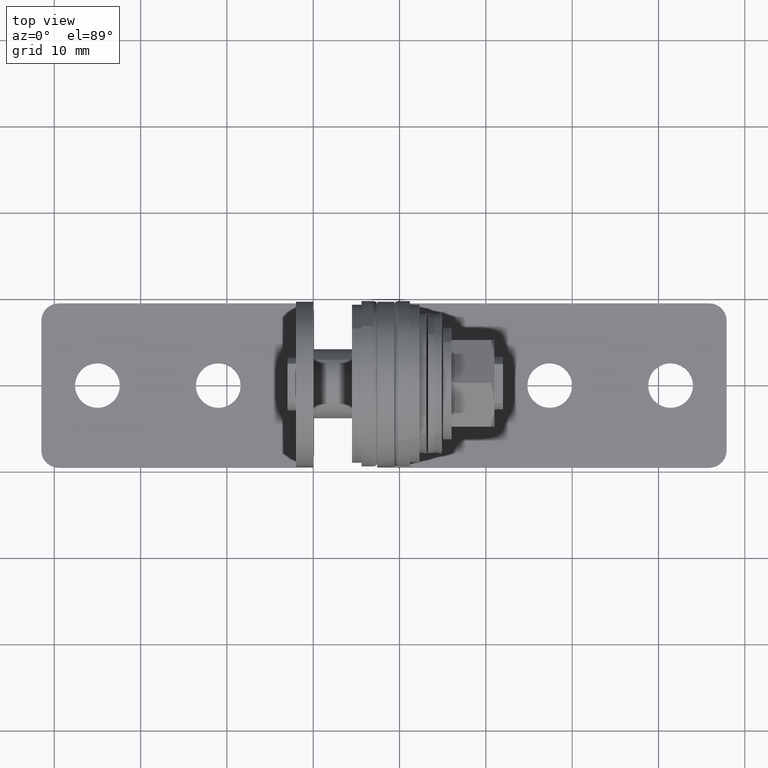
[diagram: clean part render]
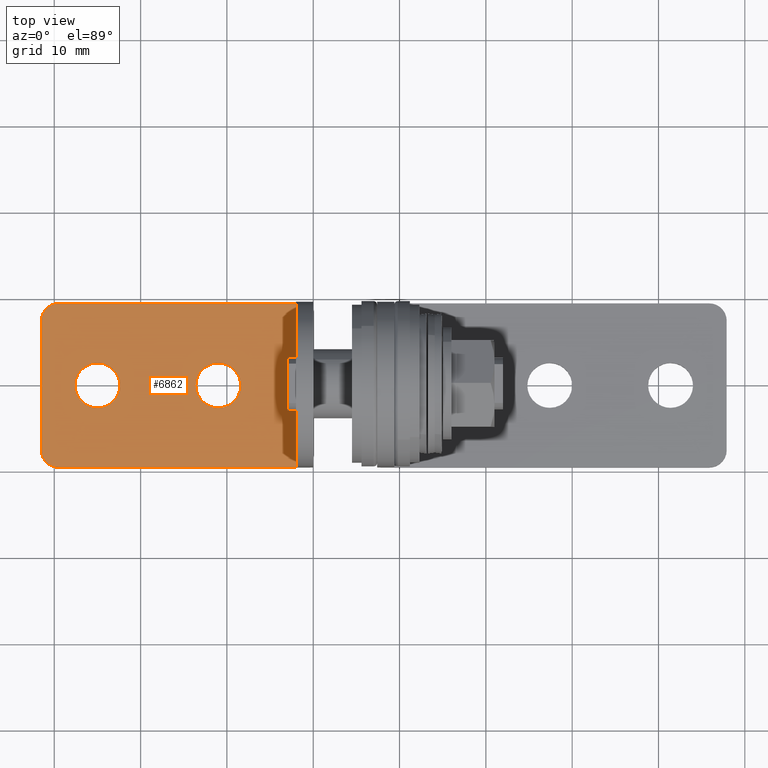
[diagram: same view with one face highlighted and labeled with its STEP entity id]
A machine part, top view. The second image highlights one B-rep face of the part: STEP entity #6862.
In plain terms, the highlighted face is a freeform B-spline surface patch.
Its self-contained STEP definition (entity closure, byte-faithful):
#5818=CARTESIAN_POINT('',(-23.145549043912471,-1.822363930594330,-10.999999999995680));
#5819=VERTEX_POINT('',#5818);
#5825=CARTESIAN_POINT('',(-22.399999999999999,0.0,-10.999999999995680));
#5826=VERTEX_POINT('',#5825);
#5827=CARTESIAN_POINT('',(-22.399999999999999,0.0,-10.999999999995680));
#5828=CARTESIAN_POINT('',(-22.399850629845378,-0.273468216536677,-10.999999999995669));
#5829=CARTESIAN_POINT('',(-22.478722159814492,-0.767709790875972,-10.999999999995730));
#5830=CARTESIAN_POINT('',(-22.769588675095900,-1.380795391501197,-10.999999999995600));
#5831=CARTESIAN_POINT('',(-23.020218561321769,-1.694850328991109,-10.999999999995721));
#5832=CARTESIAN_POINT('',(-23.145549043912471,-1.822363930594330,-10.999999999995680));
#5833=B_SPLINE_CURVE_WITH_KNOTS('',3,(#5827,#5828,#5829,#5830,#5831,#5832),.UNSPECIFIED.,.F.,.U.,(4,1,1,4),(0.000000024906273,0.820370620294471,1.482966042925823,2.019358270541513),.UNSPECIFIED.);
#5834=EDGE_CURVE('',#5826,#5819,#5833,.T.);
#5836=CARTESIAN_POINT('',(-24.999998956814380,2.599999999999791,-10.999999999995680));
#5837=VERTEX_POINT('',#5836);
#5838=CARTESIAN_POINT('',(-24.999998956814380,2.599999999999791,-10.999999999995680));
#5839=CARTESIAN_POINT('',(-24.680888185510700,2.600276141021180,-10.999999999995680));
#5840=CARTESIAN_POINT('',(-24.159955914862749,2.502813517734464,-10.999999999995650));
#5841=CARTESIAN_POINT('',(-23.563078611779769,2.188374372574919,-10.999999999995730));
#5842=CARTESIAN_POINT('',(-23.158753300675968,1.856525949137078,-10.999999999995620));
#5843=CARTESIAN_POINT('',(-22.821587010562070,1.455855586481626,-10.999999999995721));
#5844=CARTESIAN_POINT('',(-22.497203970679809,0.840036516636537,-10.999999999995660));
#5845=CARTESIAN_POINT('',(-22.399706107923262,0.319114744127429,-10.999999999995680));
#5846=CARTESIAN_POINT('',(-22.399999999999999,0.0,-10.999999999995680));
#5847=B_SPLINE_CURVE_WITH_KNOTS('',3,(#5838,#5839,#5840,#5841,#5842,#5843,#5844,#5845,#5846),.UNSPECIFIED.,.F.,.U.,(4,1,1,1,1,1,4),(0.000000103882619,0.957209066318276,1.563448100099104,2.010172297767981,2.520648982741792,3.126886190051260,4.084095487525218),.UNSPECIFIED.);
#5848=EDGE_CURVE('',#5837,#5826,#5847,.T.);
#5850=CARTESIAN_POINT('',(-26.854450956087529,1.822363930594329,-10.999999999995680));
#5851=VERTEX_POINT('',#5850);
#5852=CARTESIAN_POINT('',(-26.854450956087529,1.822363930594329,-10.999999999995680));
#5853=CARTESIAN_POINT('',(-26.620984433229381,2.060419871780607,-10.999999999995680));
#5854=CARTESIAN_POINT('',(-26.196360748274660,2.351392270537872,-10.999999999995650));
#5855=CARTESIAN_POINT('',(-25.537662916495592,2.562400394675430,-10.999999999995721));
#5856=CARTESIAN_POINT('',(-25.182815685251530,2.600030274366592,-10.999999999995660));
#5857=CARTESIAN_POINT('',(-24.999998956814380,2.599999999999791,-10.999999999995680));
#5858=B_SPLINE_CURVE_WITH_KNOTS('',3,(#5852,#5853,#5854,#5855,#5856,#5857),.UNSPECIFIED.,.F.,.U.,(4,1,1,4),(0.000000027831919,1.000124146000410,1.516292248789808,2.064738652802962),.UNSPECIFIED.);
#5859=EDGE_CURVE('',#5851,#5837,#5858,.T.);
#5948=CARTESIAN_POINT('',(-27.600000000000001,0.0,-10.999999999995680));
#5949=VERTEX_POINT('',#5948);
#5950=CARTESIAN_POINT('',(-27.600000000000001,0.0,-10.999999999995680));
#5951=CARTESIAN_POINT('',(-27.600027485261649,0.178798610902099,-10.999999999995669));
#5952=CARTESIAN_POINT('',(-27.564047300242130,0.525852948206069,-10.999999999995699));
#5953=CARTESIAN_POINT('',(-27.362083692617642,1.171302784193965,-10.999999999995660));
#5954=CARTESIAN_POINT('',(-27.083256008681470,1.590005155242634,-10.999999999995710));
#5955=CARTESIAN_POINT('',(-26.854450956087529,1.822363930594329,-10.999999999995680));
#5956=B_SPLINE_CURVE_WITH_KNOTS('',3,(#5950,#5951,#5952,#5953,#5954,#5955),.UNSPECIFIED.,.F.,.U.,(4,1,1,4),(0.000000024907635,0.536392252523473,1.041216322572380,2.019358270541513),.UNSPECIFIED.);
#5957=EDGE_CURVE('',#5949,#5851,#5956,.T.);
#5959=CARTESIAN_POINT('',(-25.000001043185620,-2.599999999999791,-10.999999999995680));
#5960=VERTEX_POINT('',#5959);
#5961=CARTESIAN_POINT('',(-25.000001043185620,-2.599999999999791,-10.999999999995680));
#5962=CARTESIAN_POINT('',(-25.319125105370851,-2.600281342752007,-10.999999999995721));
#5963=CARTESIAN_POINT('',(-25.776219995230122,-2.514716412267533,-10.999999999995641));
#5964=CARTESIAN_POINT('',(-26.401342038736608,-2.214325302883715,-10.999999999995721));
#5965=CARTESIAN_POINT('',(-26.900598449657270,-1.824815729269865,-10.999999999995600));
#5966=CARTESIAN_POINT('',(-27.316274159204209,-1.249699538099096,-10.999999999995770));
#5967=CARTESIAN_POINT('',(-27.551409862776872,-0.616850679392978,-10.999999999995580));
#5968=CARTESIAN_POINT('',(-27.600035598936401,-0.202075647442500,-10.999999999995790));
#5969=CARTESIAN_POINT('',(-27.600000000000001,0.0,-10.999999999995680));
#5970=B_SPLINE_CURVE_WITH_KNOTS('',3,(#5961,#5962,#5963,#5964,#5965,#5966,#5967,#5968,#5969),.UNSPECIFIED.,.F.,.U.,(4,1,1,1,1,1,4),(0.000000103871935,0.957209066309763,1.372009929409732,2.073923092050931,2.839716054880501,3.477870385586613,4.084095487525312),.UNSPECIFIED.);
#5971=EDGE_CURVE('',#5960,#5949,#5970,.T.);
#5973=CARTESIAN_POINT('',(-23.145549043912471,-1.822363930594330,-10.999999999995680));
#5974=CARTESIAN_POINT('',(-23.311317951887549,-1.991175497180179,-10.999999999995699));
#5975=CARTESIAN_POINT('',(-23.637839686492729,-2.243158302766792,-10.999999999995660));
#5976=CARTESIAN_POINT('',(-24.268834510424380,-2.526416051531268,-10.999999999995710));
#5977=CARTESIAN_POINT('',(-24.720378765234859,-2.600151575340064,-10.999999999995669));
#5978=CARTESIAN_POINT('',(-25.000001043185620,-2.599999999999791,-10.999999999995680));
#5979=B_SPLINE_CURVE_WITH_KNOTS('',3,(#5973,#5974,#5975,#5976,#5977,#5978),.UNSPECIFIED.,.F.,.U.,(4,1,1,4),(0.000000027834266,0.709759521808366,1.225931829803670,2.064738652802960),.UNSPECIFIED.);
#5980=EDGE_CURVE('',#5819,#5960,#5979,.T.);
#6017=CARTESIAN_POINT('',(-9.145549043912467,-1.822363930594331,-10.999999999995680));
#6018=VERTEX_POINT('',#6017);
#6024=CARTESIAN_POINT('',(-8.400000000000000,0.0,-10.999999999995680));
#6025=VERTEX_POINT('',#6024);
#6026=CARTESIAN_POINT('',(-8.400000000000000,0.0,-10.999999999995680));
#6027=CARTESIAN_POINT('',(-8.399982852108263,-0.178794746945902,-10.999999999995641));
#6028=CARTESIAN_POINT('',(-8.441351836860163,-0.578460515778493,-10.999999999995749));
#6029=CARTESIAN_POINT('',(-8.663584690224015,-1.219626367026380,-10.999999999995589));
#6030=CARTESIAN_POINT('',(-8.953779751149591,-1.627408703955813,-10.999999999995760));
#6031=CARTESIAN_POINT('',(-9.145549043912467,-1.822363930594331,-10.999999999995680));
#6032=B_SPLINE_CURVE_WITH_KNOTS('',3,(#6026,#6027,#6028,#6029,#6030,#6031),.UNSPECIFIED.,.F.,.U.,(4,1,1,4),(0.000000024906085,0.536392252522488,1.198987675185033,2.019358270541514),.UNSPECIFIED.);
#6033=EDGE_CURVE('',#6025,#6018,#6032,.T.);
#6035=CARTESIAN_POINT('',(-10.999998956814380,2.599999999999791,-10.999999999995680));
#6036=VERTEX_POINT('',#6035);
#6037=CARTESIAN_POINT('',(-10.999998956814380,2.599999999999791,-10.999999999995680));
#6038=CARTESIAN_POINT('',(-10.819192981105781,2.600027011509044,-10.999999999995669));
#6039=CARTESIAN_POINT('',(-10.457602480911660,2.562112204443132,-10.999999999995699));
#6040=CARTESIAN_POINT('',(-9.847063083066528,2.364741992084582,-10.999999999995660));
#6041=CARTESIAN_POINT('',(-9.251159870550382,1.977060893426281,-10.999999999995660));
#6042=CARTESIAN_POINT('',(-8.777494486626077,1.406937278893634,-10.999999999995721));
#6043=CARTESIAN_POINT('',(-8.474075825504370,0.744431181516998,-10.999999999995611));
#6044=CARTESIAN_POINT('',(-8.399870684427359,0.265898025862584,-10.999999999995740));
#6045=CARTESIAN_POINT('',(-8.400000000000000,0.0,-10.999999999995680));
#6046=B_SPLINE_CURVE_WITH_KNOTS('',3,(#6037,#6038,#6039,#6040,#6041,#6042,#6043,#6044,#6045),.UNSPECIFIED.,.F.,.U.,(4,1,1,1,1,1,4),(0.000000103873401,0.542416719758320,1.084838120878442,1.914436555598002,2.648272894988426,3.286427225923195,4.084095487525280),.UNSPECIFIED.);
#6047=EDGE_CURVE('',#6036,#6025,#6046,.T.);
#6049=CARTESIAN_POINT('',(-12.854450956087531,1.822363930594331,-10.999999999995680));
#6050=VERTEX_POINT('',#6049);
#6051=CARTESIAN_POINT('',(-12.854450956087531,1.822363930594331,-10.999999999995680));
#6052=CARTESIAN_POINT('',(-12.726329681249521,1.952768259548328,-10.999999999995669));
#6053=CARTESIAN_POINT('',(-12.409051712656179,2.213917761241020,-10.999999999995691));
#6054=CARTESIAN_POINT('',(-11.784962117053601,2.517685395763651,-10.999999999995680));
#6055=CARTESIAN_POINT('',(-11.279610225804030,2.600146360845670,-10.999999999995660));
#6056=CARTESIAN_POINT('',(-10.999998956814380,2.599999999999791,-10.999999999995680));
#6057=B_SPLINE_CURVE_WITH_KNOTS('',3,(#6051,#6052,#6053,#6054,#6055,#6056),.UNSPECIFIED.,.F.,.U.,(4,1,1,4),(0.000000027831284,0.548446431844033,1.225931829802955,2.064738652802958),.UNSPECIFIED.);
#6058=EDGE_CURVE('',#6050,#6036,#6057,.T.);
#6146=CARTESIAN_POINT('',(-13.600000000000000,0.0,-10.999999999995680));
#6147=VERTEX_POINT('',#6146);
#6148=CARTESIAN_POINT('',(-13.600000000000000,0.0,-10.999999999995680));
#6149=CARTESIAN_POINT('',(-13.600151218724090,0.273477000425283,-10.999999999995669));
#6150=CARTESIAN_POINT('',(-13.529633391008179,0.715101708574808,-10.999999999995710));
#6151=CARTESIAN_POINT('',(-13.258410359160260,1.334640742537641,-10.999999999995680));
#6152=CARTESIAN_POINT('',(-13.016693225375221,1.657378174946343,-10.999999999995669));
#6153=CARTESIAN_POINT('',(-12.854450956087531,1.822363930594331,-10.999999999995680));
#6154=B_SPLINE_CURVE_WITH_KNOTS('',3,(#6148,#6149,#6150,#6151,#6152,#6153),.UNSPECIFIED.,.F.,.U.,(4,1,1,4),(0.000000024906730,0.820370620294471,1.325198648347936,2.019358270541510),.UNSPECIFIED.);
#6155=EDGE_CURVE('',#6147,#6050,#6154,.T.);
#6157=CARTESIAN_POINT('',(-11.000001043185620,-2.599999999999791,-10.999999999995680));
#6158=VERTEX_POINT('',#6157);
#6159=CARTESIAN_POINT('',(-11.000001043185620,-2.599999999999791,-10.999999999995680));
#6160=CARTESIAN_POINT('',(-11.244631110667161,-2.600093068391175,-10.999999999995680));
#6161=CARTESIAN_POINT('',(-11.606180868315279,-2.548576748779208,-10.999999999995669));
#6162=CARTESIAN_POINT('',(-12.096895381796539,-2.369569169964148,-10.999999999995691));
#6163=CARTESIAN_POINT('',(-12.488545543618210,-2.150870101526286,-10.999999999995669));
#6164=CARTESIAN_POINT('',(-12.938374767248330,-1.772501650649084,-10.999999999995760));
#6165=CARTESIAN_POINT('',(-13.316276143813759,-1.249709472299343,-10.999999999995490));
#6166=CARTESIAN_POINT('',(-13.551409729029320,-0.616849391458083,-10.999999999996080));
#6167=CARTESIAN_POINT('',(-13.600035556248850,-0.202075610604425,-10.999999999995440));
#6168=CARTESIAN_POINT('',(-13.600000000000000,0.0,-10.999999999995680));
#6169=B_SPLINE_CURVE_WITH_KNOTS('',3,(#6159,#6160,#6161,#6162,#6163,#6164,#6165,#6166,#6167,#6168),.UNSPECIFIED.,.F.,.U.,(4,1,1,1,1,1,1,4),(0.000000103878637,0.733854784141129,1.084838120882787,1.563448100097075,2.073923092055220,2.839716054883327,3.477870385587976,4.084095487525238),.UNSPECIFIED.);
#6170=EDGE_CURVE('',#6158,#6147,#6169,.T.);
#6172=CARTESIAN_POINT('',(-9.145549043912467,-1.822363930594331,-10.999999999995680));
#6173=CARTESIAN_POINT('',(-9.371490588302233,-2.052711828782039,-10.999999999995691));
#6174=CARTESIAN_POINT('',(-9.811772998901462,-2.358514187662200,-10.999999999995680));
#6175=CARTESIAN_POINT('',(-10.473070147491720,-2.565884636642108,-10.999999999995691));
#6176=CARTESIAN_POINT('',(-10.838694879126169,-2.600011253580073,-10.999999999995691));
#6177=CARTESIAN_POINT('',(-11.000001043185620,-2.599999999999791,-10.999999999995680));
#6178=B_SPLINE_CURVE_WITH_KNOTS('',3,(#6172,#6173,#6174,#6175,#6176,#6177),.UNSPECIFIED.,.F.,.U.,(4,1,1,4),(0.000000027831685,0.967850017568863,1.580815744329723,2.064738652802958),.UNSPECIFIED.);
#6179=EDGE_CURVE('',#6018,#6158,#6178,.T.);
#6438=CARTESIAN_POINT('',(-31.500000000000000,7.500000000000000,-11.0));
#6439=VERTEX_POINT('',#6438);
#6445=CARTESIAN_POINT('',(-29.500000000000000,9.500000000000000,-11.0));
#6446=VERTEX_POINT('',#6445);
#6447=CARTESIAN_POINT('',(-29.500000000000000,9.500000000000000,-11.0));
#6448=CARTESIAN_POINT('',(-29.712728408235719,9.500127662491984,-11.0));
#6449=CARTESIAN_POINT('',(-30.056254195663222,9.444627788084622,-10.999999999999989));
#6450=CARTESIAN_POINT('',(-30.552316347057332,9.224784711504929,-10.999999999999989));
#6451=CARTESIAN_POINT('',(-30.917399012777320,8.939868328453363,-11.000000000000069));
#6452=CARTESIAN_POINT('',(-31.220847693515651,8.550980835351572,-10.999999999999909));
#6453=CARTESIAN_POINT('',(-31.439369579852119,8.088990201126604,-11.000000000000140));
#6454=CARTESIAN_POINT('',(-31.500122487707099,7.712724182307447,-10.999999999999901));
#6455=CARTESIAN_POINT('',(-31.500000000000000,7.500000000000000,-11.0));
#6456=B_SPLINE_CURVE_WITH_KNOTS('',3,(#6447,#6448,#6449,#6450,#6451,#6452,#6453,#6454,#6455),.UNSPECIFIED.,.F.,.U.,(4,1,1,1,1,1,4),(0.000000054407933,0.638149096912076,1.030871407057897,1.619919496222338,2.012618185351192,2.503523754812929,3.141671488670204),.UNSPECIFIED.);
#6457=EDGE_CURVE('',#6446,#6439,#6456,.T.);
#6481=CARTESIAN_POINT('',(-31.500000000000000,-7.500000000000000,-11.0));
#6482=VERTEX_POINT('',#6481);
#6483=CARTESIAN_POINT('',(-29.500000000000000,-9.500000000000000,-11.0));
#6484=VERTEX_POINT('',#6483);
#6485=CARTESIAN_POINT('',(-31.500000000000000,-7.500000000000000,-11.0));
#6486=CARTESIAN_POINT('',(-31.500117113003999,-7.712726867423879,-11.000000000000011));
#6487=CARTESIAN_POINT('',(-31.444641457521438,-8.056260829329540,-11.000000000000020));
#6488=CARTESIAN_POINT('',(-31.251388826807109,-8.492157044484999,-11.0));
#6489=CARTESIAN_POINT('',(-31.024180661043150,-8.814773215014158,-10.999999999999980));
#6490=CARTESIAN_POINT('',(-30.762211750666712,-9.064173005245767,-11.000000000000020));
#6491=CARTESIAN_POINT('',(-30.462090836773541,-9.264702854492365,-10.999999999999980));
#6492=CARTESIAN_POINT('',(-30.056263970537120,-9.444651277148994,-11.000000000000020));
#6493=CARTESIAN_POINT('',(-29.712725830692779,-9.500113184386574,-11.000000000000011));
#6494=CARTESIAN_POINT('',(-29.500000000000000,-9.500000000000000,-11.0));
#6495=B_SPLINE_CURVE_WITH_KNOTS('',3,(#6485,#6486,#6487,#6488,#6489,#6490,#6491,#6492,#6493,#6494),.UNSPECIFIED.,.F.,.U.,(4,1,1,1,1,1,1,4),(0.000000054412509,0.638149096915388,1.030871407060388,1.423581817503732,1.816261475136565,2.110800611772833,2.503523754813345,3.141671488670182),.UNSPECIFIED.);
#6496=EDGE_CURVE('',#6482,#6484,#6495,.T.);
#6695=CARTESIAN_POINT('',(-2.0,-9.500000000000000,-11.0));
#6696=VERTEX_POINT('',#6695);
#6697=CARTESIAN_POINT('',(-2.0,9.500000000000000,-11.0));
#6698=VERTEX_POINT('',#6697);
#6699=CARTESIAN_POINT('',(-2.0,-9.500000000000000,-11.0));
#6700=CARTESIAN_POINT('',(-2.0,9.500000000000000,-11.0));
#6701=QUASI_UNIFORM_CURVE('',1,(#6699,#6700),.UNSPECIFIED.,.F.,.U.);
#6702=EDGE_CURVE('',#6696,#6698,#6701,.T.);
#6736=CARTESIAN_POINT('',(-31.500000000000000,7.500000000000000,-11.0));
#6737=CARTESIAN_POINT('',(-31.500000000000000,-7.500000000000000,-11.0));
#6738=QUASI_UNIFORM_CURVE('',1,(#6736,#6737),.UNSPECIFIED.,.F.,.U.);
#6739=EDGE_CURVE('',#6439,#6482,#6738,.T.);
#6820=CARTESIAN_POINT('',(-2.0,-9.500000000000000,-11.0));
#6821=CARTESIAN_POINT('',(-29.500000000000000,-9.500000000000000,-11.0));
#6822=QUASI_UNIFORM_CURVE('',1,(#6820,#6821),.UNSPECIFIED.,.F.,.U.);
#6823=EDGE_CURVE('',#6696,#6484,#6822,.T.);
#6829=CARTESIAN_POINT('',(-0.526475057176724,-10.449049963174311,-11.0));
#6830=CARTESIAN_POINT('',(-32.973525734074933,-10.449049963174311,-11.0));
#6831=CARTESIAN_POINT('',(-0.526475057176724,10.449050472794029,-11.0));
#6832=CARTESIAN_POINT('',(-32.973525734074933,10.449050472794029,-11.0));
#6833=B_SPLINE_SURFACE_WITH_KNOTS('',1,1,((#6829,#6831),(#6830,#6832)),.UNSPECIFIED.,.F.,.F.,.U.,(2,2),(2,2),(0.0,32.447050676898208),(0.0,20.898100435968342),.UNSPECIFIED.);
#6834=ORIENTED_EDGE('',*,*,#6739,.T.);
#6835=ORIENTED_EDGE('',*,*,#6496,.T.);
#6836=ORIENTED_EDGE('',*,*,#6823,.F.);
#6837=ORIENTED_EDGE('',*,*,#6702,.T.);
#6838=CARTESIAN_POINT('',(-2.0,9.500000000000000,-11.0));
#6839=CARTESIAN_POINT('',(-29.500000000000000,9.500000000000000,-11.0));
#6840=QUASI_UNIFORM_CURVE('',1,(#6838,#6839),.UNSPECIFIED.,.F.,.U.);
#6841=EDGE_CURVE('',#6698,#6446,#6840,.T.);
#6842=ORIENTED_EDGE('',*,*,#6841,.T.);
#6843=ORIENTED_EDGE('',*,*,#6457,.T.);
#6844=EDGE_LOOP('',(#6834,#6835,#6836,#6837,#6842,#6843));
#6845=FACE_OUTER_BOUND('',#6844,.T.);
#6846=ORIENTED_EDGE('',*,*,#6047,.T.);
#6847=ORIENTED_EDGE('',*,*,#6033,.T.);
#6848=ORIENTED_EDGE('',*,*,#6179,.T.);
#6849=ORIENTED_EDGE('',*,*,#6170,.T.);
#6850=ORIENTED_EDGE('',*,*,#6155,.T.);
#6851=ORIENTED_EDGE('',*,*,#6058,.T.);
#6852=EDGE_LOOP('',(#6846,#6847,#6848,#6849,#6850,#6851));
#6853=FACE_BOUND('',#6852,.T.);
#6854=ORIENTED_EDGE('',*,*,#5848,.T.);
#6855=ORIENTED_EDGE('',*,*,#5834,.T.);
#6856=ORIENTED_EDGE('',*,*,#5980,.T.);
#6857=ORIENTED_EDGE('',*,*,#5971,.T.);
#6858=ORIENTED_EDGE('',*,*,#5957,.T.);
#6859=ORIENTED_EDGE('',*,*,#5859,.T.);
#6860=EDGE_LOOP('',(#6854,#6855,#6856,#6857,#6858,#6859));
#6861=FACE_BOUND('',#6860,.T.);
#6862=ADVANCED_FACE('',(#6845,#6853,#6861),#6833,.F.);